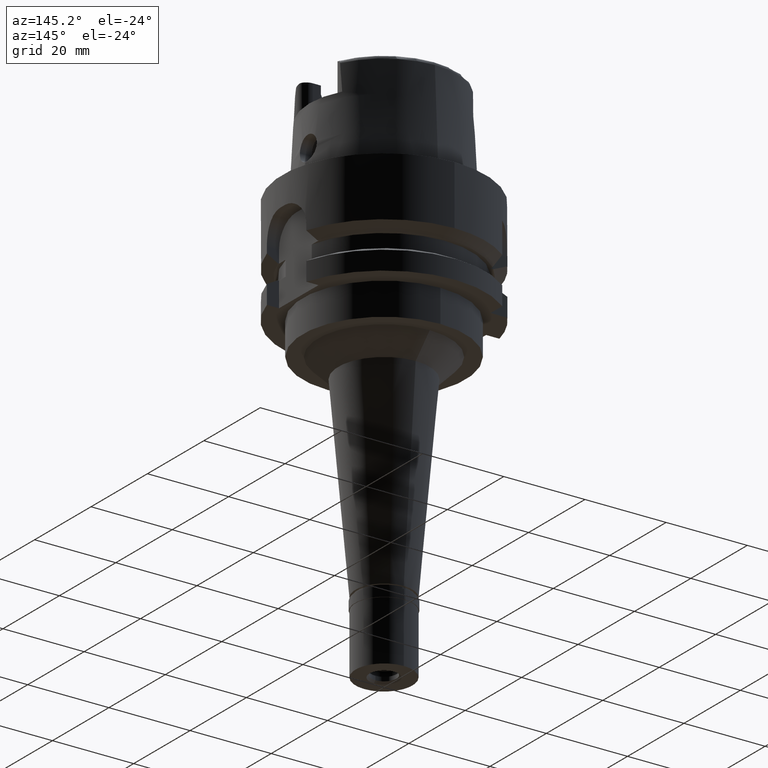
[diagram: clean part render]
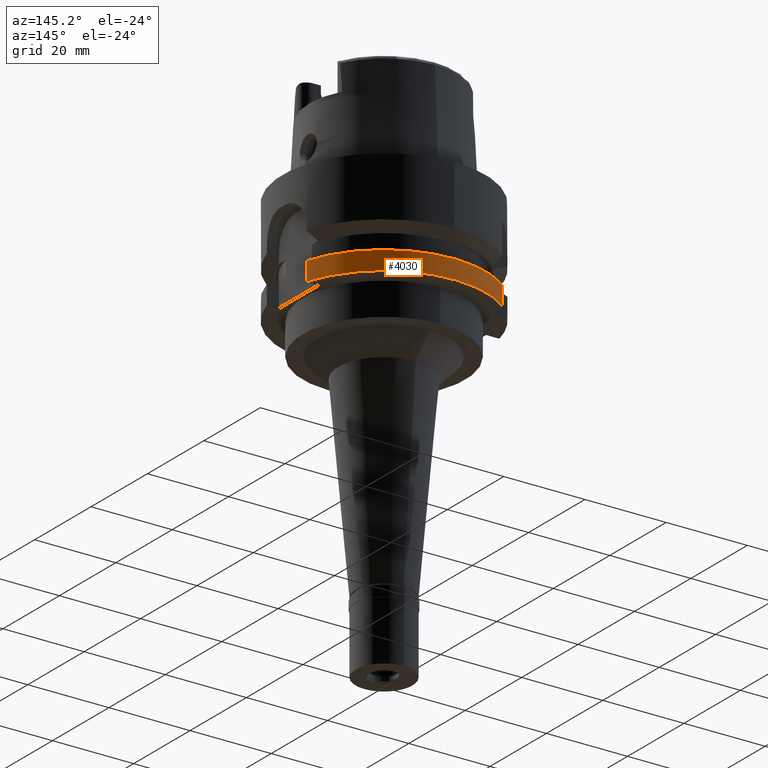
[diagram: same view with one face highlighted and labeled with its STEP entity id]
A machine part, auxiliary view. The second image highlights one B-rep face of the part: STEP entity #4030.
In plain terms, the highlighted cylindrical surface (partial cylindrical patch) has radius 25 mm, axis along (0, 0, 1).
Its self-contained STEP definition (entity closure, byte-faithful):
#28 = CARTESIAN_POINT ( 'NONE',  ( -15.50000000000000000, 19.61504156431730195, -24.45918340679000025 ) ) ;
#128 = CARTESIAN_POINT ( 'NONE',  ( 24.00000000000000000, 7.000000000000000000, -26.00000000000000000 ) ) ;
#156 = CARTESIAN_POINT ( 'NONE',  ( -15.50001397709000095, 19.61503420108000029, -21.37755022036999719 ) ) ;
#505 = EDGE_CURVE ( 'NONE', #2379, #4249, #1932, .T. ) ;
#548 = DIRECTION ( 'NONE',  ( 0.0000000000000000000, 0.0000000000000000000, -1.000000000000000000 ) ) ;
#673 = DIRECTION ( 'NONE',  ( 0.0000000000000000000, 0.0000000000000000000, 1.000000000000000000 ) ) ;
#895 = LINE ( 'NONE', #5078, #1612 ) ;
#1003 = ORIENTED_EDGE ( 'NONE', *, *, #4203, .T. ) ;
#1231 = EDGE_CURVE ( 'NONE', #1414, #4249, #4277, .T. ) ;
#1335 = DIRECTION ( 'NONE',  ( -0.6200000000000721601, 0.7846018098372642413, 0.0000000000000000000 ) ) ;
#1414 = VERTEX_POINT ( 'NONE', #156 ) ;
#1450 = ORIENTED_EDGE ( 'NONE', *, *, #1231, .F. ) ;
#1612 = VECTOR ( 'NONE', #4690, 999.9999999999998863 ) ;
#1656 = AXIS2_PLACEMENT_3D ( 'NONE', #4095, #4449, #4154 ) ;
#1932 = CIRCLE ( 'NONE', #2027, 25.00000000000000000 ) ;
#2027 = AXIS2_PLACEMENT_3D ( 'NONE', #4794, #673, #2311 ) ;
#2046 = CYLINDRICAL_SURFACE ( 'NONE', #1656, 25.00000000000000000 ) ;
#2246 = CIRCLE ( 'NONE', #3837, 24.99999999999999645 ) ;
#2311 = DIRECTION ( 'NONE',  ( 0.0000000000000000000, 1.000000000000000000, 0.0000000000000000000 ) ) ;
#2379 = VERTEX_POINT ( 'NONE', #128 ) ;
#2529 = CARTESIAN_POINT ( 'NONE',  ( 0.0000000000000000000, 0.0000000000000000000, -21.37749907476000288 ) ) ;
#2548 = CARTESIAN_POINT ( 'NONE',  ( -15.50000000000000000, 19.61504524592999843, -26.00000000000000000 ) ) ;
#2637 = EDGE_LOOP ( 'NONE', ( #1003, #5035, #3032, #1450 ) ) ;
#2893 = VERTEX_POINT ( 'NONE', #4565 ) ;
#2972 = EDGE_CURVE ( 'NONE', #2379, #2893, #895, .T. ) ;
#3032 = ORIENTED_EDGE ( 'NONE', *, *, #505, .T. ) ;
#3647 = FACE_OUTER_BOUND ( 'NONE', #2637, .T. ) ;
#3837 = AXIS2_PLACEMENT_3D ( 'NONE', #2529, #548, #1335 ) ;
#4030 = ADVANCED_FACE ( 'NONE', ( #3647 ), #2046, .T. ) ;
#4095 = CARTESIAN_POINT ( 'NONE',  ( 0.0000000000000000000, 0.0000000000000000000, -107.3000000000000114 ) ) ;
#4154 = DIRECTION ( 'NONE',  ( 0.0000000000000000000, 1.000000000000000000, 0.0000000000000000000 ) ) ;
#4203 = EDGE_CURVE ( 'NONE', #1414, #2893, #2246, .T. ) ;
#4249 = VERTEX_POINT ( 'NONE', #4758 ) ;
#4277 = B_SPLINE_CURVE_WITH_KNOTS ( 'NONE', 3,
 ( #5062, #4577, #28, #2548 ),
 .UNSPECIFIED., .F., .F.,
 ( 4, 4 ),
 ( 0.0000000000000000000, 1.000000000000000000 ),
 .UNSPECIFIED. ) ;
#4449 = DIRECTION ( 'NONE',  ( 0.0000000000000000000, 0.0000000000000000000, 1.000000000000000000 ) ) ;
#4565 = CARTESIAN_POINT ( 'NONE',  ( 23.99999968309999687, 7.000001086503000458, -21.37750801310000170 ) ) ;
#4577 = CARTESIAN_POINT ( 'NONE',  ( -15.50000000000000000, 19.61503788269864756, -22.91836681357999694 ) ) ;
#4690 = DIRECTION ( 'NONE',  ( -6.855528257370789369E-08, 2.350469299309930310E-07, 0.9999999999999701350 ) ) ;
#4758 = CARTESIAN_POINT ( 'NONE',  ( -15.50000000000000000, 19.61504524592999843, -26.00000000000000000 ) ) ;
#4794 = CARTESIAN_POINT ( 'NONE',  ( 0.0000000000000000000, 0.0000000000000000000, -26.00000000000000000 ) ) ;
#5035 = ORIENTED_EDGE ( 'NONE', *, *, #2972, .F. ) ;
#5062 = CARTESIAN_POINT ( 'NONE',  ( -15.50001397709000095, 19.61503420108000029, -21.37755022036999719 ) ) ;
#5078 = CARTESIAN_POINT ( 'NONE',  ( 24.00000000000000000, 7.000000000000000000, -26.00000000000000000 ) ) ;